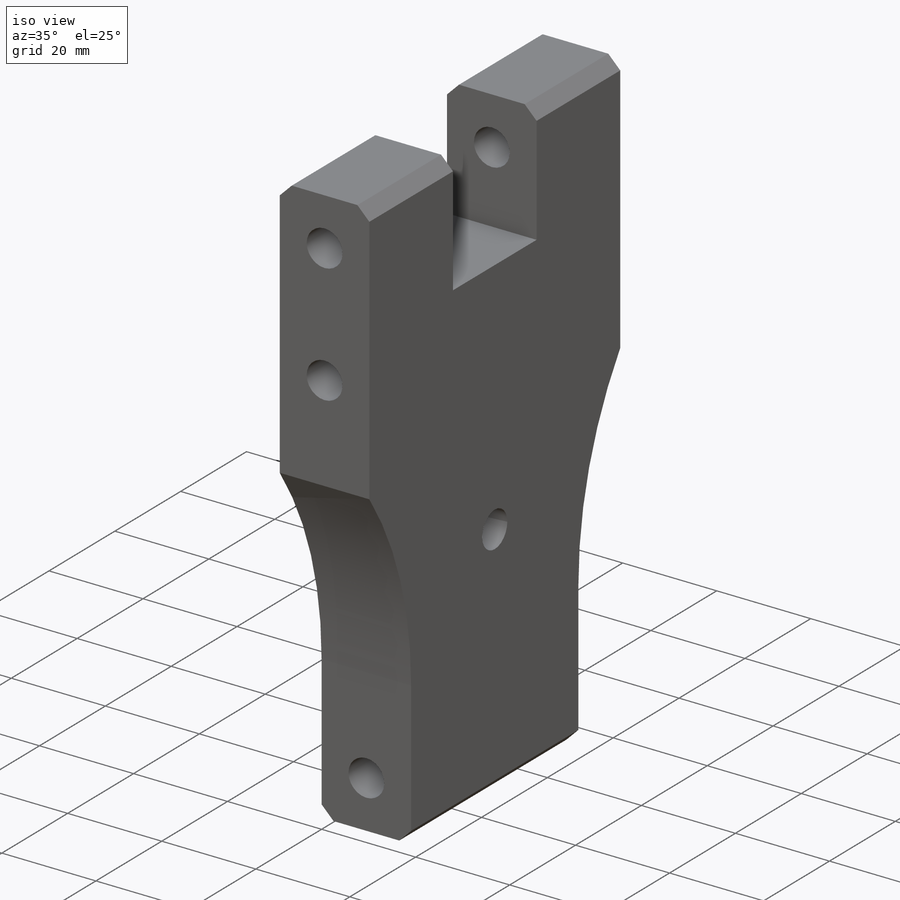
[diagram: iso view]
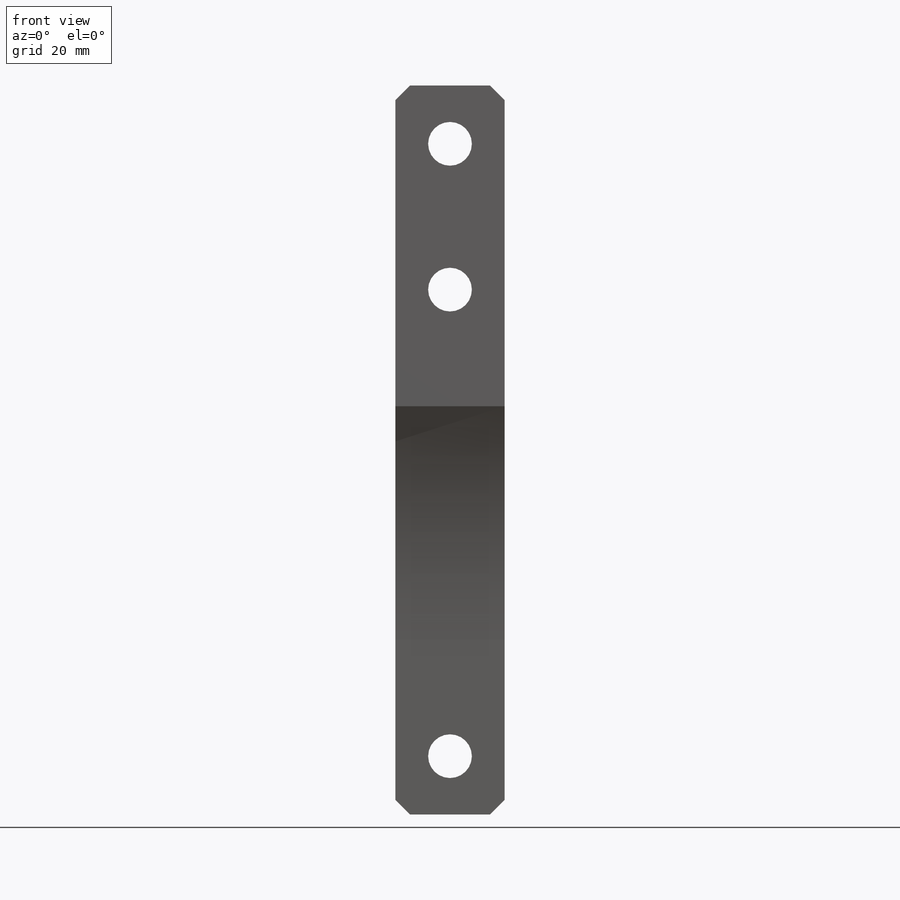
[diagram: front view]
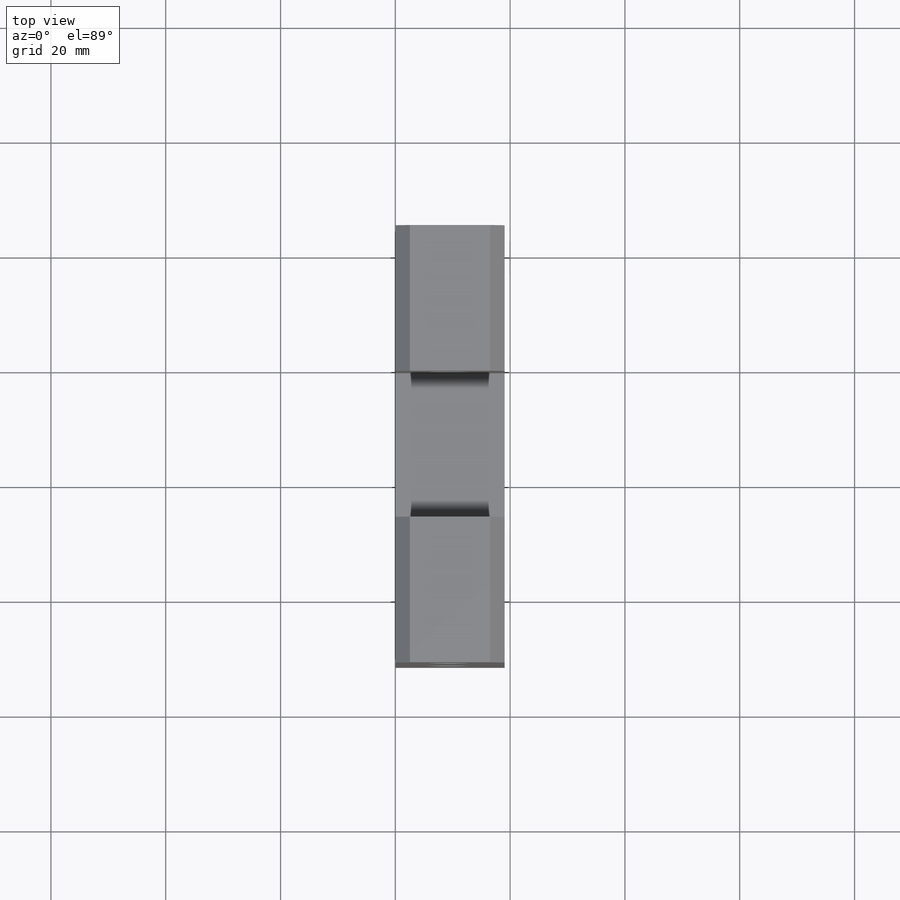
[diagram: top view]
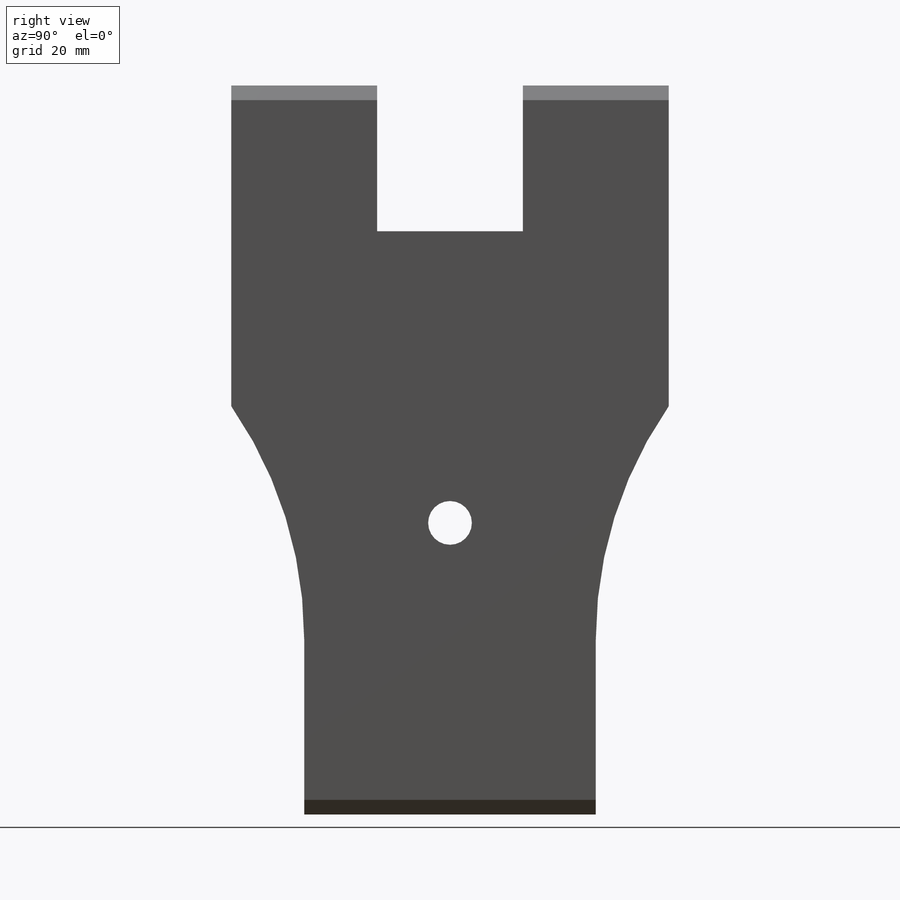
[diagram: right view]
SOLIDWORKS PART (.sldprt)
format: sldprt  version: not decoded by parser v0  size: 191,488 bytes
history: native  units: mm
features: sketch x3, cut_extrude x2, material x1, extrude x1, chamfer x1 (+11 scaffold rows collapsed)
feature tree (19):
  scaffold x11  (default folders/planes/origin — collapsed)
  material  "Material <not specified>"
  sketch  "Sketch1"  dims[c1.D1=101.6mm c1.D2=12.7mm c1.D3=12.7mm c1.D4=101.6mm c1.D5=25.4mm c1.D6=25.4mm c2.D1=50.8mm c2.D2=~48.645731mm c3.D1=50.8mm c3.D2=76.2mm c3.D3=25.4mm c3.D4=101.6mm c3.D5=30.48mm c3.D6=55.88mm c3.D7=25.4mm c3.D8=193.548mm]
  extrude  "Boss-Extrude1"  Depth=19.05mm
  sketch  "Sketch2"  dims[c1.D1=~4.495536mm c1.D2=~4.27349mm c1.D3=~3.863797mm c2.D1=10.16mm c2.D2=10.16mm c2.D3=10.16mm]
  cut_extrude  "Cut-Extrude1"  [1 undecoded]
  sketch  "Sketch3"  dims[D1=50.8mm]
  cut_extrude  "Cut-Extrude2"  [1 undecoded]
  chamfer  "Chamfer1"  Distance=2.54mm Angle=45deg
decode coverage: 5 of 7 modeling features carry decoded parameters
note: ~ marks probable driven/reference dimensions
note: 2 parameter values undecoded
note: suppression state not decoded; provenance and decode notes live in map.json
